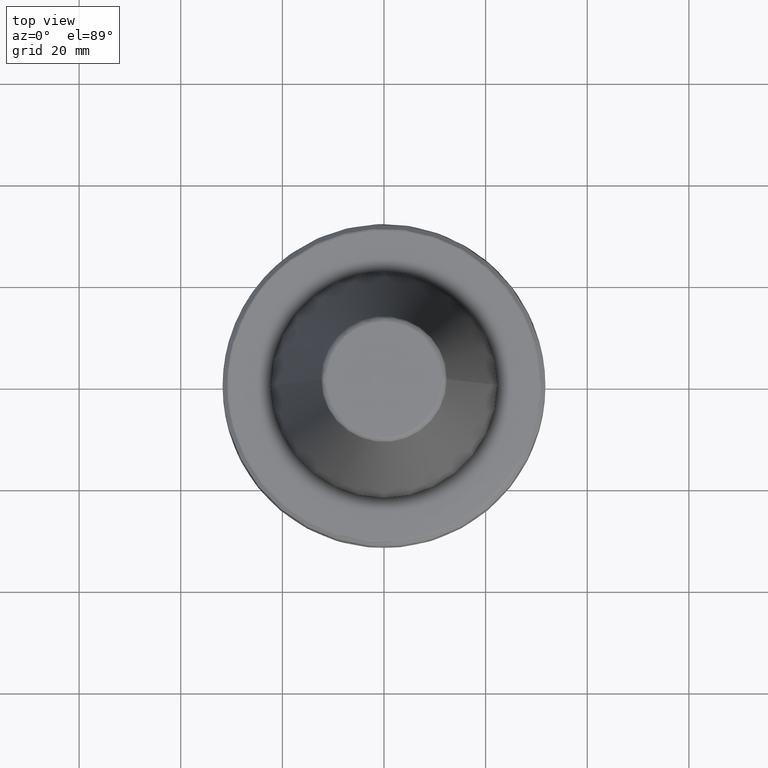
[diagram: clean part render]
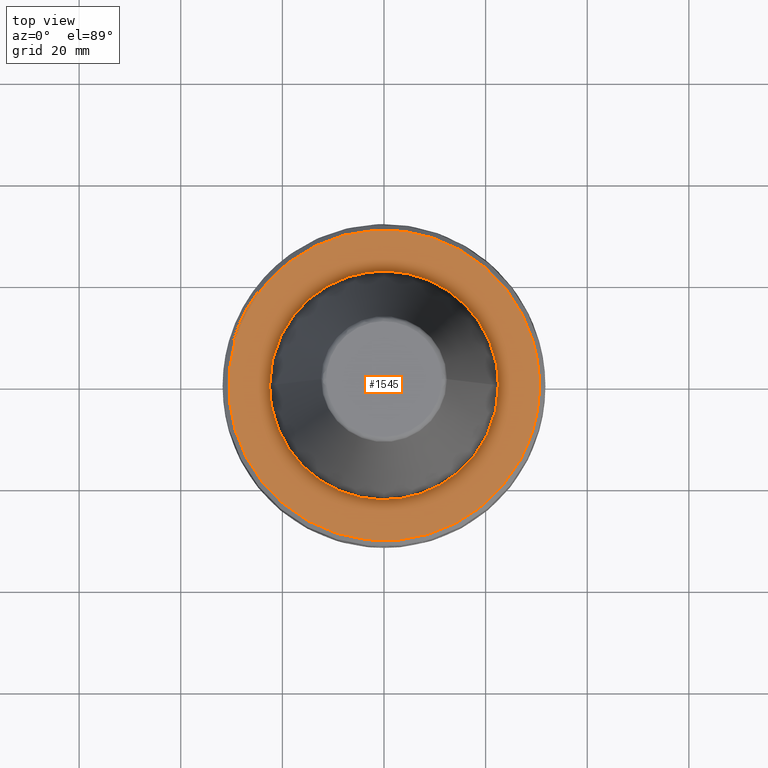
[diagram: same view with one face highlighted and labeled with its STEP entity id]
A machine part, top view. The second image highlights one B-rep face of the part: STEP entity #1545.
In plain terms, the highlighted planar face has unit normal (0, 0, 1).
Its self-contained STEP definition (entity closure, byte-faithful):
#10 = CARTESIAN_POINT ( 'NONE',  ( 2.454392795801720400, 30.48577087148502700, -3.200000000000001100 ) ) ;
#18 = CARTESIAN_POINT ( 'NONE',  ( 2.528533460625868900, 30.47970956005749700, -3.200000000000000200 ) ) ;
#37 = CARTESIAN_POINT ( 'NONE',  ( -18.49999999999998900, 24.35467712833949600, -3.199999999999994400 ) ) ;
#45 = CARTESIAN_POINT ( 'NONE',  ( -11.24038425294622300, 28.44688173160703600, -3.199999999999999700 ) ) ;
#54 = CARTESIAN_POINT ( 'NONE',  ( -27.77681930598627200, -12.80099507029943200, -3.199999999999999700 ) ) ;
#56 = CARTESIAN_POINT ( 'NONE',  ( -10.22499329430632600, 28.83626103400671100, -3.200000000000001100 ) ) ;
#69 = CARTESIAN_POINT ( 'NONE',  ( -9.340167935440471000, 29.12987215590241500, -3.200000000000000200 ) ) ;
#72 = CARTESIAN_POINT ( 'NONE',  ( -23.99031363748433100, -19.00230350509720600, -3.200000000000000200 ) ) ;
#75 = CARTESIAN_POINT ( 'NONE',  ( -3.848954711156225000, 30.36703951690236300, -3.199999999999999700 ) ) ;
#84 = CARTESIAN_POINT ( 'NONE',  ( -14.17277443621608800, -27.10247095659376600, -3.200000000000000600 ) ) ;
#86 = CARTESIAN_POINT ( 'NONE',  ( -2.603266312792917400, 30.49913331156266900, -3.199999999999999700 ) ) ;
#89 = CARTESIAN_POINT ( 'NONE',  ( -1.037282440228858100, 30.56832190550300200, -3.199999999999999700 ) ) ;
#98 = CARTESIAN_POINT ( 'NONE',  ( -5.357254148508216600, -30.11268354679387800, -3.200000000000000200 ) ) ;
#111 = CARTESIAN_POINT ( 'NONE',  ( -7.688059179597157600, 29.60519698498957200, -3.200000000000000200 ) ) ;
#115 = CARTESIAN_POINT ( 'NONE',  ( 4.560392810202886300, -30.24244440558941300, -3.199999999999999700 ) ) ;
#120 = CARTESIAN_POINT ( 'NONE',  ( -6.624788100412466500, 29.86976700629700000, -3.200000000000000600 ) ) ;
#131 = CARTESIAN_POINT ( 'NONE',  ( 13.33348093169351500, -27.52628396580792400, -3.199999999999999700 ) ) ;
#133 = CARTESIAN_POINT ( 'NONE',  ( -5.703788022667265700, 30.05429890996831700, -3.200000000000000600 ) ) ;
#135 = CARTESIAN_POINT ( 'NONE',  ( 19.96233499367379600, 23.17496761743385400, -3.200000000000001100 ) ) ;
#136 = CARTESIAN_POINT ( 'NONE',  ( 21.74157624390884500, -5.873028755191072900, -3.200000000000000200 ) ) ;
#141 = CARTESIAN_POINT ( 'NONE',  ( 16.20252111302109900, 25.94001894739811600, -3.200000000000000200 ) ) ;
#142 = CARTESIAN_POINT ( 'NONE',  ( 22.63882571495336600, -20.58104395213036900, -3.200000000000001100 ) ) ;
#143 = AXIS2_PLACEMENT_3D ( 'NONE', #2948, #1967, #809 ) ;
#148 = CARTESIAN_POINT ( 'NONE',  ( 16.33427142386522800, 25.85726144149187200, -3.199999999999999700 ) ) ;
#149 = CARTESIAN_POINT ( 'NONE',  ( 18.88550870197563500, -12.23098025896565000, -3.200000000000000200 ) ) ;
#156 = CARTESIAN_POINT ( 'NONE',  ( 27.54438001541699400, -13.29323302808682800, -3.199999999999999700 ) ) ;
#158 = CARTESIAN_POINT ( 'NONE',  ( 16.53138120580203100, 25.73240088654582200, -3.200000000000000200 ) ) ;
#161 = CARTESIAN_POINT ( 'NONE',  ( 8.896980882703543300, -20.66783356944393200, -3.199999999999999300 ) ) ;
#167 = CARTESIAN_POINT ( 'NONE',  ( 11.80488663214476100, 28.31907149285310900, -3.199999999999999700 ) ) ;
#172 = CARTESIAN_POINT ( 'NONE',  ( 13.99881594507354500, 27.30134385078334700, -3.200000000000000200 ) ) ;
#178 = CARTESIAN_POINT ( 'NONE',  ( 4.115307463144500100, -22.12045849206793200, -3.200000000000000600 ) ) ;
#183 = CARTESIAN_POINT ( 'NONE',  ( 16.13498759199677200, 25.98207429179373300, -3.200000000000000600 ) ) ;
#186 = CARTESIAN_POINT ( 'NONE',  ( -5.873028755191068500, -21.74157624390884200, -3.200000000000001100 ) ) ;
#188 = CARTESIAN_POINT ( 'NONE',  ( 24.54047191479334700, 18.25550594145703400, -3.199999999999999700 ) ) ;
#192 = CARTESIAN_POINT ( 'NONE',  ( -12.23098025896354500, -18.88550870197710900, -3.200000000000000200 ) ) ;
#195 = EDGE_CURVE ( 'NONE', #454, #2718, #2405, .T. ) ;
#200 = CARTESIAN_POINT ( 'NONE',  ( 24.72355445173918300, 18.00675945256601200, -3.199999999999999700 ) ) ;
#204 = CARTESIAN_POINT ( 'NONE',  ( -20.66783356943510700, -8.896980882719226700, -3.200000000000000200 ) ) ;
#214 = AXIS2_PLACEMENT_3D ( 'NONE', #2409, #2318, #2316 ) ;
#217 = CARTESIAN_POINT ( 'NONE',  ( -22.12045798509555200, -4.115310202398622300, -3.200000000000000200 ) ) ;
#232 = CARTESIAN_POINT ( 'NONE',  ( -24.35467712833948900, 18.50000000000000000, -3.199999999999994400 ) ) ;
#233 = CARTESIAN_POINT ( 'NONE',  ( 25.08445269890755500, 17.50055599941463700, -3.199999999999999300 ) ) ;
#238 = CARTESIAN_POINT ( 'NONE',  ( 25.61393462944857900, 16.73340307643418300, -3.200000000000000200 ) ) ;
#242 = CARTESIAN_POINT ( 'NONE',  ( 26.10782023935503900, 15.94270692369355700, -3.200000000000000200 ) ) ;
#253 = CARTESIAN_POINT ( 'NONE',  ( 26.46043628646762600, 15.33791319425800600, -3.199999999999999700 ) ) ;
#286 = B_SPLINE_CURVE_WITH_KNOTS ( 'NONE', 3,
 ( #2342, #1700, #1804, #1802, #2349, #2347, #2344, #1825, #1823, #1819, #601, #577, #559, #2579, #2542, #2533, #1975, #1972, #1965, #2605, #2583, #2550, #2029, #1999, #1976, #737, #720, #701, #2638, #2731, #2725, #2127, #2109, #2101, #2678, #2681, #2667, #2151, #2136, #2134, #1680, #1663, #1658, #1656, #1654, #1642, #520, #510, #506, #2438, #2432, #2419, #1892, #1891, #1873, #2451, #2448, #2444, #1921, #1917, #1907, #631, #621, #609, #455, #426, #411, #2635, #2626, #2615, #2064, #2048, #2037, #2684, #2570, #2521, #2093, #2084, #2074, #2285, #2280, #2279, #1750, #1748, #1743, #2312, #2296, #2293, #1797, #1791, #1781, #1639, #1631, #1625, #1620, #1615, #1598, #1526, #1517, #1509, #1570, #1541, #1528, #1453, #1434, #1427 ),
 .UNSPECIFIED., .F., .F.,
 ( 4, 1, 1, 1, 1, 1, 2, 2, 1, 1, 1, 1, 2, 2, 1, 1, 1, 2, 2, 2, 1, 1, 1, 2, 2, 1, 1, 1, 1, 2, 2, 1, 1, 1, 1, 1, 2, 2, 2, 1, 1, 1, 1, 1, 2, 2, 1, 1, 1, 1, 2, 2, 1, 1, 1, 2, 2, 2, 1, 1, 1, 2, 2, 1, 1, 1, 1, 2, 2, 1, 1, 1, 1, 1, 2, 2, 4 ),
 ( 0.0000000000000000000, 0.03124999999999839000, 0.04687499999999758500, 0.05468749999999717600, 0.05859374999999699500, 0.06054687499999689800, 0.06152343749999685700, 0.06249999999999680800, 0.09374999999999644700, 0.1093749999999962800, 0.1171874999999962000, 0.1210937499999961300, 0.1230468749999961400, 0.1249999999999961400, 0.1562499999999958900, 0.1718749999999958400, 0.1796874999999957800, 0.1835937499999957800, 0.1874999999999957800, 0.2499999999999961100, 0.2812499999999963400, 0.2968749999999964500, 0.3046874999999965000, 0.3085937499999965600, 0.3124999999999965600, 0.3437499999999969500, 0.3593749999999971700, 0.3671874999999973400, 0.3710937499999974500, 0.3730468749999974500, 0.3749999999999974500, 0.4062499999999965000, 0.4218749999999960000, 0.4296874999999957800, 0.4335937499999956700, 0.4355468749999956100, 0.4365234374999956100, 0.4374999999999956100, 0.4999999999999944500, 0.5312499999999938900, 0.5468749999999936700, 0.5546874999999936700, 0.5585937499999935600, 0.5605468749999935600, 0.5615234374999934500, 0.5624999999999934500, 0.5937499999999932300, 0.6093749999999931200, 0.6171874999999931200, 0.6210937499999930100, 0.6230468749999930100, 0.6249999999999930100, 0.6562499999999930100, 0.6718749999999931200, 0.6796874999999932300, 0.6835937499999932300, 0.6874999999999932300, 0.7499999999999935600, 0.7812499999999936700, 0.7968749999999937800, 0.8046874999999938900, 0.8085937499999938900, 0.8124999999999938900, 0.8437499999999942300, 0.8593749999999944500, 0.8671874999999946700, 0.8710937499999947800, 0.8730468749999948900, 0.8749999999999950000, 0.9062499999999963400, 0.9218749999999971100, 0.9296874999999975600, 0.9335937499999976700, 0.9355468749999977800, 0.9365234374999977800, 0.9374999999999978900, 1.000000000000000000 ),
 .UNSPECIFIED. ) ;
#312 = CARTESIAN_POINT ( 'NONE',  ( -16.56085603394844300, 25.82766579425000200, -3.200000000000000600 ) ) ;
#324 = CARTESIAN_POINT ( 'NONE',  ( -27.67364674244894100, -13.02197758003642200, -3.199999999999999300 ) ) ;
#328 = CARTESIAN_POINT ( 'NONE',  ( -22.56109142494934300, -20.65127541914423400, -3.199999999999999700 ) ) ;
#340 = CARTESIAN_POINT ( 'NONE',  ( -13.24394569623384400, -27.58067624818896800, -3.200000000000000200 ) ) ;
#350 = CARTESIAN_POINT ( 'NONE',  ( -4.857303280943340500, -30.19618385838899500, -3.200000000000001500 ) ) ;
#358 = CARTESIAN_POINT ( 'NONE',  ( 5.458850156849631000, -30.10416084470510600, -3.200000000000000200 ) ) ;
#367 = CARTESIAN_POINT ( 'NONE',  ( 13.79955834376171900, -27.29438307719195600, -3.199999999999998800 ) ) ;
#371 = CARTESIAN_POINT ( 'NONE',  ( 21.14787063408966400, -7.686207123305460500, -3.200000000000000600 ) ) ;
#379 = CARTESIAN_POINT ( 'NONE',  ( 24.36043102575109000, -18.50078877829109200, -3.200000000000001100 ) ) ;
#382 = CARTESIAN_POINT ( 'NONE',  ( 17.00797338681919900, -14.81177920651095200, -3.200000000000000600 ) ) ;
#398 = CARTESIAN_POINT ( 'NONE',  ( 8.458563634139736100, -20.84958280862343500, -3.200000000000000600 ) ) ;
#403 = CARTESIAN_POINT ( 'NONE',  ( 1.375857497312903900, -22.49996757041163400, -3.199999999999999300 ) ) ;
#409 = VERTEX_POINT ( 'NONE', #888 ) ;
#411 = CARTESIAN_POINT ( 'NONE',  ( 7.984698353428139100, 21.03591195339260300, -3.200000000000000200 ) ) ;
#413 = CARTESIAN_POINT ( 'NONE',  ( -7.686207123305462300, -21.14787063408966000, -3.200000000000000600 ) ) ;
#419 = DIRECTION ( 'NONE',  ( -0.0000000000000000000, -0.0000000000000000000, 1.000000000000000000 ) ) ;
#426 = CARTESIAN_POINT ( 'NONE',  ( 7.686207123274499500, 21.14787063409919600, -3.200000000000000600 ) ) ;
#429 = CARTESIAN_POINT ( 'NONE',  ( -14.81177920650302200, -17.00797338683712900, -3.199999999999999300 ) ) ;
#439 = CARTESIAN_POINT ( 'NONE',  ( 27.61100680695583200, -13.15427429998718600, -3.200000000000001100 ) ) ;
#441 = CARTESIAN_POINT ( 'NONE',  ( -20.84958280862066700, -8.458563634144654800, -3.200000000000000600 ) ) ;
#450 = CARTESIAN_POINT ( 'NONE',  ( -22.50000000000000700, -1.376388306158772500, -3.200000000000000600 ) ) ;
#454 = VERTEX_POINT ( 'NONE', #835 ) ;
#455 = CARTESIAN_POINT ( 'NONE',  ( 7.086048807648322300, 21.36063849916836300, -3.200000000000000600 ) ) ;
#473 = VERTEX_POINT ( 'NONE', #893 ) ;
#506 = CARTESIAN_POINT ( 'NONE',  ( -4.183831549484186700, 22.10760170058108200, -3.199999999999999700 ) ) ;
#510 = CARTESIAN_POINT ( 'NONE',  ( -4.251028217307362100, 22.09485092206773900, -3.200000000000001100 ) ) ;
#514 = CARTESIAN_POINT ( 'NONE',  ( 3.435970030515198600, 30.39351583441197100, -3.200000000000000600 ) ) ;
#520 = CARTESIAN_POINT ( 'NONE',  ( -4.407618502888016800, 22.06440325785875700, -3.199999999999999300 ) ) ;
#559 = CARTESIAN_POINT ( 'NONE',  ( -21.36063849916189700, 7.086048807666240500, -3.199999999999999300 ) ) ;
#568 = CARTESIAN_POINT ( 'NONE',  ( -27.28410426008761300, -13.84330885026767500, -3.200000000000001100 ) ) ;
#577 = CARTESIAN_POINT ( 'NONE',  ( -21.74157624392201900, 5.873028755144217100, -3.200000000000000200 ) ) ;
#578 = EDGE_CURVE ( 'NONE', #2786, #2501, #1752, .T. ) ;
#582 = CARTESIAN_POINT ( 'NONE',  ( -22.20554153728079400, -21.03152593331130400, -3.200000000000000600 ) ) ;
#601 = CARTESIAN_POINT ( 'NONE',  ( -21.99164062164871000, 4.811519987923173100, -3.200000000000001100 ) ) ;
#603 = CARTESIAN_POINT ( 'NONE',  ( -10.75810060105670600, -28.63517167116412300, -3.199999999999999700 ) ) ;
#609 = CARTESIAN_POINT ( 'NONE',  ( 5.873028755120320600, 21.74157624393063400, -3.200000000000000600 ) ) ;
#614 = CARTESIAN_POINT ( 'NONE',  ( -4.705085878606683800, -30.22027126947324800, -3.200000000000001100 ) ) ;
#615 = CARTESIAN_POINT ( 'NONE',  ( 21.46121072403760300, 21.79932372885590300, -3.199999999999999700 ) ) ;
#618 = CARTESIAN_POINT ( 'NONE',  ( 22.77429056701172200, 20.45246270157970500, -3.200000000000000200 ) ) ;
#621 = CARTESIAN_POINT ( 'NONE',  ( 4.811519987909519200, 21.99164062165363400, -3.200000000000000200 ) ) ;
#628 = CARTESIAN_POINT ( 'NONE',  ( 8.022211266189565000, -29.51842591293807800, -3.199999999999999700 ) ) ;
#629 = CARTESIAN_POINT ( 'NONE',  ( -14.47569103928374700, 27.05153356264567000, -3.200000000000001100 ) ) ;
#631 = CARTESIAN_POINT ( 'NONE',  ( 4.071751450878374500, 22.12851860711415200, -3.200000000000000200 ) ) ;
#633 = CARTESIAN_POINT ( 'NONE',  ( 23.59206616262321900, 19.50355204649191200, -3.200000000000000600 ) ) ;
#634 = CARTESIAN_POINT ( 'NONE',  ( 22.45304634867161300, -1.715799754931167900, -3.200000000000000200 ) ) ;
#642 = CARTESIAN_POINT ( 'NONE',  ( 15.48792760816363200, -26.42690957761473000, -3.199999999999999700 ) ) ;
#646 = CARTESIAN_POINT ( 'NONE',  ( 26.94337422490542600, 14.47847139620824700, -3.200000000000001100 ) ) ;
#648 = CARTESIAN_POINT ( 'NONE',  ( 20.98673507276421500, -8.112282896148103700, -3.200000000000000200 ) ) ;
#652 = CARTESIAN_POINT ( 'NONE',  ( 27.43651020383328300, 13.53928854120142800, -3.200000000000000200 ) ) ;
#654 = CARTESIAN_POINT ( 'NONE',  ( 25.00162825174038500, -17.61641936751932000, -3.200000000000000200 ) ) ;
#658 = CARTESIAN_POINT ( 'NONE',  ( 19.60237854230756900, 23.47705769608395700, -3.199999999999999700 ) ) ;
#659 = CARTESIAN_POINT ( 'NONE',  ( 14.49938022714922100, -17.23607257882569900, -3.199999999999999300 ) ) ;
#662 = CARTESIAN_POINT ( 'NONE',  ( 29.30593451889330900, 8.750000000000012400, -3.199999999999994400 ) ) ;
#667 = CARTESIAN_POINT ( 'NONE',  ( 8.324524703929661500, -20.90345235396846500, -3.200000000000000600 ) ) ;
#681 = CARTESIAN_POINT ( 'NONE',  ( -1.715646395057947200, -22.45307472456143200, -3.200000000000000600 ) ) ;
#687 = CARTESIAN_POINT ( 'NONE',  ( 4.488890650684448100, 30.26424933308379300, -3.200000000000001100 ) ) ;
#691 = CARTESIAN_POINT ( 'NONE',  ( -8.112282896148109000, -20.98673507276421500, -3.200000000000000200 ) ) ;
#693 = CARTESIAN_POINT ( 'NONE',  ( 6.576107746370472500, 29.91282126789227600, -3.200000000000000200 ) ) ;
#696 = CARTESIAN_POINT ( 'NONE',  ( 8.333223866125692300, 29.45234853338218900, -3.200000000000001100 ) ) ;
#699 = CARTESIAN_POINT ( 'NONE',  ( -17.23607257883263300, -14.49938022713351800, -3.200000000000000200 ) ) ;
#701 = CARTESIAN_POINT ( 'NONE',  ( -15.36086717163463800, 16.45896426178976300, -3.200000000000001100 ) ) ;
#706 = CARTESIAN_POINT ( 'NONE',  ( 28.85918037033473700, -10.24629117985158000, -3.199999999999998800 ) ) ;
#708 = CARTESIAN_POINT ( 'NONE',  ( -20.90345235396920400, -8.324524703927284700, -3.199999999999999700 ) ) ;
#720 = CARTESIAN_POINT ( 'NONE',  ( -17.00797338682269500, 14.81177920651246400, -3.200000000000000600 ) ) ;
#737 = CARTESIAN_POINT ( 'NONE',  ( -17.98264380950361400, 13.61204652639205500, -3.199999999999999700 ) ) ;
#738 = CARTESIAN_POINT ( 'NONE',  ( -0.7285515701826120700, 30.57722589314201800, -3.200000000000000200 ) ) ;
#742 = CARTESIAN_POINT ( 'NONE',  ( -0.1069271606581389100, 30.58574494882751400, -3.199999999999999700 ) ) ;
#747 = CARTESIAN_POINT ( 'NONE',  ( 0.8252062185939788000, 30.58430088161414800, -3.199999999999999700 ) ) ;
#778 = CARTESIAN_POINT ( 'NONE',  ( 16.98769424001548200, 25.43598951906483700, -3.199999999999999700 ) ) ;
#792 = CARTESIAN_POINT ( 'NONE',  ( 17.88588114721942900, 24.82288649367547600, -3.200000000000000600 ) ) ;
#797 = CARTESIAN_POINT ( 'NONE',  ( 18.63100279129773500, 24.26260340260906600, -3.200000000000000200 ) ) ;
#804 = CARTESIAN_POINT ( 'NONE',  ( 26.49765628487155300, 15.27351905694540000, -3.199999999999998400 ) ) ;
#809 = DIRECTION ( 'NONE',  ( 1.000000000000000000, 0.0000000000000000000, 0.0000000000000000000 ) ) ;
#810 = CARTESIAN_POINT ( 'NONE',  ( 26.57327955334342600, 15.14158967653129700, -3.200000000000000600 ) ) ;
#834 = CARTESIAN_POINT ( 'NONE',  ( -25.98948903615415400, -16.13194971530458600, -3.200000000000000600 ) ) ;
#835 = CARTESIAN_POINT ( 'NONE',  ( 29.30593451889330900, 8.750000000000012400, -3.199999999999994400 ) ) ;
#837 = CARTESIAN_POINT ( 'NONE',  ( 26.68593816532891300, 14.94335966607924600, -3.200000000000000600 ) ) ;
#847 = CARTESIAN_POINT ( 'NONE',  ( -20.89129424420701800, -22.40114452926077600, -3.200000000000000200 ) ) ;
#852 = CARTESIAN_POINT ( 'NONE',  ( -9.727253638797327200, -28.99655467839254200, -3.199999999999999300 ) ) ;
#869 = CARTESIAN_POINT ( 'NONE',  ( -1.561052253934965800, -30.58428797049582900, -3.200000000000000200 ) ) ;
#871 = CARTESIAN_POINT ( 'NONE',  ( 19.36078262649303700, 23.67667543168819600, -3.199999999999998800 ) ) ;
#886 = CARTESIAN_POINT ( 'NONE',  ( 9.042334779846246600, -29.21737119051157800, -3.200000000000000600 ) ) ;
#888 = CARTESIAN_POINT ( 'NONE',  ( -22.50000000000000400, 2.755455298081544800E-015, -3.199999999999999300 ) ) ;
#889 = CARTESIAN_POINT ( 'NONE',  ( 22.22708190165376200, -3.501431974169107800, -3.200000000000000200 ) ) ;
#893 = CARTESIAN_POINT ( 'NONE',  ( 22.50000000000000400, 0.0000000000000000000, -3.199999999999999300 ) ) ;
#896 = CARTESIAN_POINT ( 'NONE',  ( 18.95028892448621600, -24.02085740246086200, -3.200000000000000200 ) ) ;
#899 = CARTESIAN_POINT ( 'NONE',  ( 20.93772414133970000, -8.237955812652693100, -3.200000000000000200 ) ) ;
#904 = CARTESIAN_POINT ( 'NONE',  ( 25.15049554832833000, -17.40274506739941200, -3.200000000000000600 ) ) ;
#908 = AXIS2_PLACEMENT_3D ( 'NONE', #1852, #419, #2078 ) ;
#909 = CARTESIAN_POINT ( 'NONE',  ( 12.87560569880346700, -18.45365423866068300, -3.200000000000000600 ) ) ;
#919 = CARTESIAN_POINT ( 'NONE',  ( 19.23818591257920800, 23.77638626440856500, -3.199999999999999700 ) ) ;
#922 = CARTESIAN_POINT ( 'NONE',  ( 6.571610993358049800, -21.54071728405216400, -3.200000000000000600 ) ) ;
#927 = CARTESIAN_POINT ( 'NONE',  ( 0.0000000000000000000, 0.0000000000000000000, -3.199999999999994400 ) ) ;
#931 = CARTESIAN_POINT ( 'NONE',  ( -3.501364879224580000, -22.22709431610556100, -3.200000000000000600 ) ) ;
#936 = CARTESIAN_POINT ( 'NONE',  ( -8.237955812652499400, -20.93772414133978200, -3.199999999999999700 ) ) ;
#948 = CARTESIAN_POINT ( 'NONE',  ( -18.45365423866372400, -12.87560569879659900, -3.200000000000001100 ) ) ;
#963 = CARTESIAN_POINT ( 'NONE',  ( -21.54071728403163600, -6.571610993424445500, -3.200000000000000600 ) ) ;
#977 = CIRCLE ( 'NONE', #2907, 30.58431457505076500 ) ;
#980 = ORIENTED_EDGE ( 'NONE', *, *, #2880, .T. ) ;
#986 = CIRCLE ( 'NONE', #908, 30.58431457505076500 ) ;
#1014 = CARTESIAN_POINT ( 'NONE',  ( -28.10145510425815400, 12.21006217782732200, -3.200000000000000200 ) ) ;
#1070 = CARTESIAN_POINT ( 'NONE',  ( -25.40916637817120700, -17.02330348438625100, -3.200000000000000200 ) ) ;
#1081 = CARTESIAN_POINT ( 'NONE',  ( -17.59524950987386300, -25.03042619205421800, -3.199999999999999700 ) ) ;
#1091 = VERTEX_POINT ( 'NONE', #1858 ) ;
#1096 = CARTESIAN_POINT ( 'NONE',  ( -9.479920520539741000, -29.07806852477674700, -3.200000000000000200 ) ) ;
#1105 = ORIENTED_EDGE ( 'NONE', *, *, #1712, .T. ) ;
#1113 = CARTESIAN_POINT ( 'NONE',  ( 1.948029713574673800, -30.53976102089345400, -3.200000000000000200 ) ) ;
#1119 = CARTESIAN_POINT ( 'NONE',  ( 9.284161809037010800, -29.14115916764471600, -3.199999999999999700 ) ) ;
#1123 = CARTESIAN_POINT ( 'NONE',  ( 22.15133245634663300, -3.946100473371058700, -3.199999999999999700 ) ) ;
#1129 = CARTESIAN_POINT ( 'NONE',  ( 21.01696416253381700, -22.22623960064235900, -3.200000000000000600 ) ) ;
#1133 = CARTESIAN_POINT ( 'NONE',  ( 20.16961076428826500, -10.02279629559978100, -3.199999999999998800 ) ) ;
#1145 = CARTESIAN_POINT ( 'NONE',  ( 25.66906082886724100, -16.64808964168210200, -3.200000000000000600 ) ) ;
#1148 = CARTESIAN_POINT ( 'NONE',  ( 12.47437238289376500, -18.72563884435562500, -3.200000000000000600 ) ) ;
#1154 = CARTESIAN_POINT ( 'NONE',  ( -12.10176357993545400, 28.08831770798232300, -3.199999999999999700 ) ) ;
#1156 = CARTESIAN_POINT ( 'NONE',  ( 4.719991316668444600, -22.00072453873692200, -3.200000000000000200 ) ) ;
#1159 = DIRECTION ( 'NONE',  ( 1.000000000000000000, 0.0000000000000000000, 0.0000000000000000000 ) ) ;
#1162 = CARTESIAN_POINT ( 'NONE',  ( -3.946081902448917300, -22.15133589248955200, -3.200000000000000600 ) ) ;
#1170 = CARTESIAN_POINT ( 'NONE',  ( -11.95872026362621700, 28.14951867898243900, -3.200000000000000600 ) ) ;
#1174 = CARTESIAN_POINT ( 'NONE',  ( -10.02279629560528400, -20.16961076428609100, -3.200000000000000600 ) ) ;
#1181 = CARTESIAN_POINT ( 'NONE',  ( -11.74385340892359900, 28.24048383202686100, -3.199999999999999700 ) ) ;
#1185 = CARTESIAN_POINT ( 'NONE',  ( -18.72563884435658800, -12.47437238289159500, -3.200000000000000200 ) ) ;
#1187 = EDGE_CURVE ( 'NONE', #409, #473, #286, .T. ) ;
#1194 = CARTESIAN_POINT ( 'NONE',  ( -22.00072453872795100, -4.719991316697491600, -3.200000000000000600 ) ) ;
#1195 = CARTESIAN_POINT ( 'NONE',  ( -8.594763330018802000, 29.35224666532914000, -3.199999999999999700 ) ) ;
#1205 = CARTESIAN_POINT ( 'NONE',  ( -8.442993445781287000, 29.39627059819669700, -3.199999999999999700 ) ) ;
#1227 = CARTESIAN_POINT ( 'NONE',  ( -29.30593451889330600, -8.750000000000019500, -3.199999999999999300 ) ) ;
#1228 = CARTESIAN_POINT ( 'NONE',  ( -8.141340568208146800, 29.48124923292407100, -3.200000000000000200 ) ) ;
#1230 = CARTESIAN_POINT ( 'NONE',  ( -12.17478045277850100, 28.05674127324149600, -3.200000000000000200 ) ) ;
#1239 = CARTESIAN_POINT ( 'NONE',  ( 0.0000000000000000000, 0.0000000000000000000, -3.199999999999994400 ) ) ;
#1262 = CARTESIAN_POINT ( 'NONE',  ( 2.680059272117456500, 30.46677238501864700, -3.199999999999999700 ) ) ;
#1273 = CARTESIAN_POINT ( 'NONE',  ( -29.30593451889331300, 8.749999999999998200, -3.200000000000000200 ) ) ;
#1294 = CARTESIAN_POINT ( 'NONE',  ( -28.70585737796715600, -10.60399651550462100, -3.199999999999999700 ) ) ;
#1304 = CARTESIAN_POINT ( 'NONE',  ( -25.26695455758210700, -17.23321866383381000, -3.199999999999998800 ) ) ;
#1316 = CARTESIAN_POINT ( 'NONE',  ( -15.28437999715246000, -26.49728736109064200, -3.200000000000000600 ) ) ;
#1325 = CARTESIAN_POINT ( 'NONE',  ( -8.608449995044022500, -29.35905586418761400, -3.199999999999999700 ) ) ;
#1332 = CARTESIAN_POINT ( 'NONE',  ( 3.981098828364807200, -30.32522191696399000, -3.200000000000001100 ) ) ;
#1337 = CARTESIAN_POINT ( 'NONE',  ( 22.50000000000000400, 0.0000000000000000000, -3.199999999999999300 ) ) ;
#1345 = CARTESIAN_POINT ( 'NONE',  ( 10.17404257737425200, -28.85454279252324000, -3.200000000000000200 ) ) ;
#1350 = CARTESIAN_POINT ( 'NONE',  ( 22.13216582914422800, -4.051871761185046800, -3.199999999999999300 ) ) ;
#1355 = CARTESIAN_POINT ( 'NONE',  ( 21.76708313657914600, -21.48502183609348700, -3.200000000000000200 ) ) ;
#1356 = CARTESIAN_POINT ( 'NONE',  ( 19.18907189198100100, -11.75138774876444200, -3.200000000000001100 ) ) ;
#1362 = CARTESIAN_POINT ( 'NONE',  ( 26.99856130462750400, -14.37953634106440100, -3.199999999999999700 ) ) ;
#1365 = CARTESIAN_POINT ( 'NONE',  ( 11.67597141480891300, -19.24838585783804100, -3.200000000000000600 ) ) ;
#1372 = CARTESIAN_POINT ( 'NONE',  ( 4.251028217301676900, -22.09485092206981000, -3.200000000000000200 ) ) ;
#1382 = CARTESIAN_POINT ( 'NONE',  ( -4.051866326836864700, -22.13216683465148900, -3.199999999999999700 ) ) ;
#1389 = CARTESIAN_POINT ( 'NONE',  ( -11.75138774876684200, -19.18907189198004900, -3.200000000000000200 ) ) ;
#1401 = CARTESIAN_POINT ( 'NONE',  ( -19.24838585782649900, -11.67597141482940200, -3.199999999999999700 ) ) ;
#1415 = CARTESIAN_POINT ( 'NONE',  ( -22.09485092206732700, -4.251028217309717600, -3.200000000000000600 ) ) ;
#1427 = CARTESIAN_POINT ( 'NONE',  ( 22.50000000000000400, 0.0000000000000000000, -3.199999999999999300 ) ) ;
#1434 = CARTESIAN_POINT ( 'NONE',  ( 22.50000000000000400, 1.376388306145680500, -3.200000000000000200 ) ) ;
#1445 = DIRECTION ( 'NONE',  ( 1.000000000000000000, 0.0000000000000000000, 0.0000000000000000000 ) ) ;
#1453 = CARTESIAN_POINT ( 'NONE',  ( 22.37479026312431400, 2.741111199236805400, -3.200000000000000600 ) ) ;
#1498 = CARTESIAN_POINT ( 'NONE',  ( -27.91867295085385700, -12.49063015164107400, -3.199999999999999700 ) ) ;
#1503 = CARTESIAN_POINT ( 'NONE',  ( -24.73772846013598300, -18.00390437555412500, -3.200000000000000200 ) ) ;
#1509 = CARTESIAN_POINT ( 'NONE',  ( 22.09485092206839200, 4.251028217305421500, -3.199999999999999700 ) ) ;
#1514 = CARTESIAN_POINT ( 'NONE',  ( -14.35953925151739300, -27.00399422411325600, -3.200000000000000600 ) ) ;
#1517 = CARTESIAN_POINT ( 'NONE',  ( 22.06440325786003600, 4.407618502884258900, -3.200000000000000200 ) ) ;
#1526 = CARTESIAN_POINT ( 'NONE',  ( 22.00072453873180600, 4.719991316681966300, -3.200000000000000200 ) ) ;
#1528 = CARTESIAN_POINT ( 'NONE',  ( 22.12045798509555900, 4.115310202398825700, -3.200000000000000600 ) ) ;
#1530 = CARTESIAN_POINT ( 'NONE',  ( -6.054356345127971800, -29.98396483372179200, -3.200000000000000600 ) ) ;
#1541 = CARTESIAN_POINT ( 'NONE',  ( 22.11603594838275600, 4.139014538616730300, -3.200000000000001100 ) ) ;
#1544 = CARTESIAN_POINT ( 'NONE',  ( 4.463888020573260300, -30.25684056681910400, -3.200000000000000200 ) ) ;
#1545 = ADVANCED_FACE ( 'NONE', ( #1696, #2571 ), #2336, .T. ) ;
#1548 = CARTESIAN_POINT ( 'NONE',  ( 22.49999999999999600, -0.6880163828697204400, -3.199999999999998800 ) ) ;
#1552 = CARTESIAN_POINT ( 'NONE',  ( 12.67616131524168600, -27.83926536632835900, -3.199999999999998800 ) ) ;
#1554 = CARTESIAN_POINT ( 'NONE',  ( 21.99164062164117800, -4.811519987949947300, -3.200000000000000600 ) ) ;
#1558 = CARTESIAN_POINT ( 'NONE',  ( 21.98943496480653100, -21.25737027114857000, -3.199999999999999700 ) ) ;
#1563 = CARTESIAN_POINT ( 'NONE',  ( 18.93590339580105900, -12.15280497094321500, -3.200000000000000200 ) ) ;
#1570 = CARTESIAN_POINT ( 'NONE',  ( 22.10760170058146200, 4.183831549483062200, -3.200000000000000200 ) ) ;
#1573 = CARTESIAN_POINT ( 'NONE',  ( 27.47815279796052600, -13.43017972972223900, -3.199999999999999700 ) ) ;
#1579 = CARTESIAN_POINT ( 'NONE',  ( 9.504079748831721000, -20.40055232577914500, -3.200000000000000600 ) ) ;
#1592 = CARTESIAN_POINT ( 'NONE',  ( 4.139014538615635200, -22.11603594838316400, -3.200000000000000200 ) ) ;
#1598 = CARTESIAN_POINT ( 'NONE',  ( 21.86223353762935800, 5.341505914837489000, -3.200000000000000600 ) ) ;
#1600 = CARTESIAN_POINT ( 'NONE',  ( -4.811519987949943700, -21.99164062164117100, -3.199999999999999700 ) ) ;
#1610 = CARTESIAN_POINT ( 'NONE',  ( -12.15280497094398100, -18.93590339580075400, -3.199999999999999700 ) ) ;
#1615 = CARTESIAN_POINT ( 'NONE',  ( 21.54071728404044400, 6.571610993388965500, -3.200000000000000200 ) ) ;
#1616 = ORIENTED_EDGE ( 'NONE', *, *, #2698, .T. ) ;
#1620 = CARTESIAN_POINT ( 'NONE',  ( 21.18878749287739200, 7.603831144559534600, -3.200000000000000600 ) ) ;
#1625 = CARTESIAN_POINT ( 'NONE',  ( 20.90345235396888100, 8.324524703928553000, -3.200000000000000200 ) ) ;
#1626 = CARTESIAN_POINT ( 'NONE',  ( -20.40055232576401100, -9.504079748858595500, -3.199999999999999700 ) ) ;
#1631 = CARTESIAN_POINT ( 'NONE',  ( 20.88510905071724400, 8.370451108366499000, -3.200000000000001100 ) ) ;
#1635 = CARTESIAN_POINT ( 'NONE',  ( -22.11603594838243900, -4.139014538617989700, -3.200000000000000600 ) ) ;
#1639 = CARTESIAN_POINT ( 'NONE',  ( 20.84958280862257900, 8.458563634141711400, -3.200000000000000200 ) ) ;
#1642 = CARTESIAN_POINT ( 'NONE',  ( -4.719991316688983800, 22.00072453872944300, -3.200000000000000600 ) ) ;
#1643 = CARTESIAN_POINT ( 'NONE',  ( -26.43773944750569900, 15.48610090927757100, -3.200000000000000600 ) ) ;
#1649 = ORIENTED_EDGE ( 'NONE', *, *, #2019, .T. ) ;
#1654 = CARTESIAN_POINT ( 'NONE',  ( -5.341505914849514100, 21.86223353762529300, -3.200000000000000600 ) ) ;
#1656 = CARTESIAN_POINT ( 'NONE',  ( -6.571610993404996200, 21.54071728403503300, -3.199999999999999700 ) ) ;
#1658 = CARTESIAN_POINT ( 'NONE',  ( -7.603831144568696100, 21.18878749287429700, -3.200000000000000200 ) ) ;
#1663 = CARTESIAN_POINT ( 'NONE',  ( -8.324524703927975700, 20.90345235396907600, -3.199999999999999700 ) ) ;
#1680 = CARTESIAN_POINT ( 'NONE',  ( -8.370451108366790300, 20.88510905071707000, -3.200000000000000200 ) ) ;
#1681 = CARTESIAN_POINT ( 'NONE',  ( -25.46593605708334400, 17.03706203159250900, -3.199999999999999700 ) ) ;
#1696 = FACE_OUTER_BOUND ( 'NONE', #2872, .T. ) ;
#1697 = EDGE_LOOP ( 'NONE', ( #2301, #1616 ) ) ;
#1700 = CARTESIAN_POINT ( 'NONE',  ( -22.50000000000000700, 0.6880163828565797300, -3.200000000000001100 ) ) ;
#1712 = EDGE_CURVE ( 'NONE', #2718, #2786, #2147, .T. ) ;
#1717 = B_SPLINE_CURVE_WITH_KNOTS ( 'NONE', 3,
 ( #1337, #1548, #634, #2248, #889, #2464, #1123, #2682, #1350, #2895, #1554, #136, #1806, #371, #2035, #648, #2258, #899, #2479, #1133, #2690, #1356, #2908, #1563, #149, #1818, #382, #2041, #659, #2272, #909, #2484, #1148, #2707, #1365, #2914, #1579, #161, #1828, #398, #2055, #667, #2278, #922, #2497, #1156, #2720, #1372, #2919, #1592, #178, #1838, #403, #2069, #681, #2283, #931, #2513, #1162, #2727, #1382, #2926, #1600, #186, #1849, #413, #2077, #691, #2297, #936, #2518, #1174, #2736, #1389, #2939, #1610, #192, #1856, #429, #2085, #699, #2309, #948, #2524, #1185, #2749, #1401, #2949, #1626, #204, #1867, #441, #2095, #708, #2315, #963, #2534, #1194, #2757, #1415, #2961, #1635, #217, #1877, #450, #2104 ),
 .UNSPECIFIED., .F., .F.,
 ( 4, 1, 1, 1, 1, 1, 2, 2, 1, 1, 1, 1, 2, 2, 1, 1, 1, 2, 2, 2, 1, 1, 1, 2, 2, 1, 1, 1, 1, 2, 2, 1, 1, 1, 1, 1, 2, 2, 2, 1, 1, 1, 1, 1, 2, 2, 1, 1, 1, 1, 2, 2, 1, 1, 1, 2, 2, 2, 1, 1, 1, 2, 2, 1, 1, 1, 1, 2, 2, 1, 1, 1, 1, 1, 2, 2, 4 ),
 ( 0.0000000000000000000, 0.03124999999999908400, 0.04687499999999860500, 0.05468749999999836900, 0.05859374999999825800, 0.06054687499999819600, 0.06152343749999818900, 0.06249999999999818200, 0.09374999999999732200, 0.1093749999999968900, 0.1171874999999966700, 0.1210937499999965400, 0.1230468749999965400, 0.1249999999999965300, 0.1562499999999963600, 0.1718749999999962500, 0.1796874999999961700, 0.1835937499999960900, 0.1874999999999960000, 0.2499999999999953400, 0.2812499999999949500, 0.2968749999999948400, 0.3046874999999947800, 0.3085937499999947800, 0.3124999999999947800, 0.3437499999999951200, 0.3593749999999953400, 0.3671874999999953900, 0.3710937499999954500, 0.3730468749999955000, 0.3749999999999955600, 0.4062499999999958400, 0.4218749999999960000, 0.4296874999999960600, 0.4335937499999960600, 0.4355468749999960600, 0.4365234374999960600, 0.4374999999999960000, 0.4999999999999953400, 0.5312499999999950000, 0.5468749999999947800, 0.5546874999999946700, 0.5585937499999946700, 0.5605468749999945600, 0.5615234374999945600, 0.5624999999999944500, 0.5937499999999942300, 0.6093749999999941200, 0.6171874999999940000, 0.6210937499999938900, 0.6230468749999940000, 0.6249999999999940000, 0.6562499999999947800, 0.6718749999999952300, 0.6796874999999954500, 0.6835937499999955600, 0.6874999999999955600, 0.7499999999999982200, 0.7812499999999995600, 0.7968750000000002200, 0.8046875000000005600, 0.8085937500000007800, 0.8125000000000008900, 0.8437500000000022200, 0.8593750000000028900, 0.8671875000000032200, 0.8710937500000033300, 0.8730468750000034400, 0.8750000000000034400, 0.9062500000000028900, 0.9218750000000026600, 0.9296875000000025500, 0.9335937500000024400, 0.9355468750000023300, 0.9365234375000023300, 0.9375000000000022200, 1.000000000000000000 ),
 .UNSPECIFIED. ) ;
#1743 = CARTESIAN_POINT ( 'NONE',  ( 18.72563884435662000, 12.47437238289156800, -3.199999999999999300 ) ) ;
#1748 = CARTESIAN_POINT ( 'NONE',  ( 18.61742605471209400, 12.63533988221464600, -3.199999999999999700 ) ) ;
#1750 = CARTESIAN_POINT ( 'NONE',  ( 18.45365423866382000, 12.87560569879649600, -3.200000000000000200 ) ) ;
#1751 = CARTESIAN_POINT ( 'NONE',  ( -27.71504625243958100, -12.93363446210935500, -3.200000000000000200 ) ) ;
#1752 = B_SPLINE_CURVE_WITH_KNOTS ( 'NONE', 3,
 ( #1927, #1681, #1643, #1014, #2924, #1273 ),
 .UNSPECIFIED., .F., .F.,
 ( 4, 2, 4 ),
 ( 0.0000000000000000000, 0.5000000000000000000, 1.000000000000000000 ),
 .UNSPECIFIED. ) ;
#1756 = CARTESIAN_POINT ( 'NONE',  ( -23.04904609321287300, -20.11097302519079100, -3.200000000000000200 ) ) ;
#1757 = CARTESIAN_POINT ( 'NONE',  ( 28.95764183663448000, 9.916519147392797600, -3.200000000000000200 ) ) ;
#1770 = CARTESIAN_POINT ( 'NONE',  ( -14.07778958757438100, -27.15192223847229500, -3.199999999999999700 ) ) ;
#1779 = CARTESIAN_POINT ( 'NONE',  ( -5.007473042384827300, -30.17190452209561600, -3.199999999999999700 ) ) ;
#1781 = CARTESIAN_POINT ( 'NONE',  ( 20.79589492657334300, 8.590524805355373800, -3.199999999999999300 ) ) ;
#1789 = CARTESIAN_POINT ( 'NONE',  ( 4.606748291940157900, -30.23542110148293100, -3.200000000000000200 ) ) ;
#1791 = CARTESIAN_POINT ( 'NONE',  ( 20.66783356944120300, 8.896980882709847500, -3.200000000000000200 ) ) ;
#1797 = CARTESIAN_POINT ( 'NONE',  ( 20.40055232577446300, 9.504079748842523000, -3.200000000000000600 ) ) ;
#1799 = CARTESIAN_POINT ( 'NONE',  ( 13.61336996244148700, -27.38773233231271600, -3.199999999999999300 ) ) ;
#1802 = CARTESIAN_POINT ( 'NONE',  ( -22.31609819896381800, 2.907458251726792000, -3.199999999999999700 ) ) ;
#1804 = CARTESIAN_POINT ( 'NONE',  ( -22.45304634867162000, 1.715799754908170300, -3.200000000000000600 ) ) ;
#1806 = CARTESIAN_POINT ( 'NONE',  ( 21.36063849915200700, -7.086048807701382100, -3.199999999999998800 ) ) ;
#1810 = VERTEX_POINT ( 'NONE', #2396 ) ;
#1814 = CARTESIAN_POINT ( 'NONE',  ( 23.46525560290407600, -19.64699716450099800, -3.200000000000000200 ) ) ;
#1818 = CARTESIAN_POINT ( 'NONE',  ( 17.98264380952407700, -13.61204652636657500, -3.199999999999999700 ) ) ;
#1819 = CARTESIAN_POINT ( 'NONE',  ( -22.12851860711429500, 4.071751450877952600, -3.199999999999999300 ) ) ;
#1823 = CARTESIAN_POINT ( 'NONE',  ( -22.13216582914423100, 4.051871761184235000, -3.200000000000000200 ) ) ;
#1825 = CARTESIAN_POINT ( 'NONE',  ( -22.13986916256529700, 4.009566559497096200, -3.200000000000000200 ) ) ;
#1828 = CARTESIAN_POINT ( 'NONE',  ( 8.590524805351991600, -20.79589492657481400, -3.199999999999999700 ) ) ;
#1838 = CARTESIAN_POINT ( 'NONE',  ( 2.741286511513688400, -22.37475781689234500, -3.199999999999999700 ) ) ;
#1849 = CARTESIAN_POINT ( 'NONE',  ( -7.086048807701388300, -21.36063849915201700, -3.200000000000001100 ) ) ;
#1852 = CARTESIAN_POINT ( 'NONE',  ( 0.0000000000000000000, 0.0000000000000000000, -3.199999999999994400 ) ) ;
#1856 = CARTESIAN_POINT ( 'NONE',  ( -13.61204652640028800, -17.98264380950038800, -3.200000000000000200 ) ) ;
#1858 = CARTESIAN_POINT ( 'NONE',  ( 30.58431457505076500, 0.0000000000000000000, -3.199999999999997500 ) ) ;
#1864 = CARTESIAN_POINT ( 'NONE',  ( 27.58831379343373100, -13.20180910046451600, -3.200000000000000600 ) ) ;
#1867 = CARTESIAN_POINT ( 'NONE',  ( -20.79589492657008900, -8.590524805360397300, -3.200000000000000200 ) ) ;
#1868 = CARTESIAN_POINT ( 'NONE',  ( 28.33583760078836600, 11.62329757012845600, -3.199999999999998800 ) ) ;
#1873 = CARTESIAN_POINT ( 'NONE',  ( 1.715646394992351700, 22.45307472456536100, -3.200000000000000600 ) ) ;
#1874 = ORIENTED_EDGE ( 'NONE', *, *, #2300, .T. ) ;
#1877 = CARTESIAN_POINT ( 'NONE',  ( -22.37479026312430700, -2.741111199249898400, -3.200000000000000600 ) ) ;
#1891 = CARTESIAN_POINT ( 'NONE',  ( 0.6879287486189594700, 22.50001621479642500, -3.199999999999999300 ) ) ;
#1892 = CARTESIAN_POINT ( 'NONE',  ( -1.375857497237935400, 22.49996757040714000, -3.199999999999999700 ) ) ;
#1901 = CARTESIAN_POINT ( 'NONE',  ( -29.08260568821224000, -9.497984010070927900, -3.200000000000000600 ) ) ;
#1907 = CARTESIAN_POINT ( 'NONE',  ( 4.051866326834534100, 22.13216683465163800, -3.200000000000001100 ) ) ;
#1917 = CARTESIAN_POINT ( 'NONE',  ( 4.009555819168163300, 22.13987114982794000, -3.199999999999999700 ) ) ;
#1921 = CARTESIAN_POINT ( 'NONE',  ( 3.946081902440961000, 22.15133589249003200, -3.200000000000000600 ) ) ;
#1927 = CARTESIAN_POINT ( 'NONE',  ( -24.35467712833948900, 18.50000000000000000, -3.199999999999994400 ) ) ;
#1944 = CARTESIAN_POINT ( 'NONE',  ( 1.756429892742337000, 30.54018886217601600, -3.200000000000001500 ) ) ;
#1965 = CARTESIAN_POINT ( 'NONE',  ( -20.64043889494947600, 8.988933404968230800, -3.200000000000000600 ) ) ;
#1967 = DIRECTION ( 'NONE',  ( -0.0000000000000000000, -0.0000000000000000000, 1.000000000000000000 ) ) ;
#1972 = CARTESIAN_POINT ( 'NONE',  ( -20.93772414133938800, 8.237955812653009200, -3.200000000000000200 ) ) ;
#1975 = CARTESIAN_POINT ( 'NONE',  ( -20.95368502148434700, 8.197263642344069000, -3.199999999999999300 ) ) ;
#1976 = CARTESIAN_POINT ( 'NONE',  ( -18.88550870197691400, 12.23098025896405400, -3.200000000000000200 ) ) ;
#1977 = CARTESIAN_POINT ( 'NONE',  ( -27.65365956857728900, -13.06437642884269900, -3.199999999999999700 ) ) ;
#1989 = CARTESIAN_POINT ( 'NONE',  ( -22.34825637509471400, -20.87982665239000500, -3.200000000000000600 ) ) ;
#1995 = CARTESIAN_POINT ( 'NONE',  ( -12.11250377921978400, -28.10533704282234200, -3.199999999999999700 ) ) ;
#1999 = CARTESIAN_POINT ( 'NONE',  ( -18.93590339580232400, 12.15280497094196100, -3.199999999999999700 ) ) ;
#2004 = CARTESIAN_POINT ( 'NONE',  ( -4.757131534848371100, -30.21212539776389100, -3.200000000000000600 ) ) ;
#2019 = EDGE_CURVE ( 'NONE', #1810, #1091, #977, .T. ) ;
#2021 = CARTESIAN_POINT ( 'NONE',  ( 6.650821378651534700, -29.87181404183089500, -3.200000000000001500 ) ) ;
#2029 = CARTESIAN_POINT ( 'NONE',  ( -19.03780993567813700, 11.99256734168333200, -3.200000000000000200 ) ) ;
#2032 = CARTESIAN_POINT ( 'NONE',  ( 13.89121605744878400, -27.24785232258963700, -3.199999999999999700 ) ) ;
#2034 = CARTESIAN_POINT ( 'NONE',  ( 20.78517142370580800, 22.45144644054389700, -3.200000000000000600 ) ) ;
#2035 = CARTESIAN_POINT ( 'NONE',  ( 21.03591195338748300, -7.984698353444730200, -3.199999999999999300 ) ) ;
#2037 = CARTESIAN_POINT ( 'NONE',  ( 11.18287332201877700, 19.53083148215803900, -3.200000000000000600 ) ) ;
#2039 = CARTESIAN_POINT ( 'NONE',  ( 24.79077054223405700, -17.91356280169222300, -3.200000000000001100 ) ) ;
#2041 = CARTESIAN_POINT ( 'NONE',  ( 15.36086717163637700, -16.45896426179050900, -3.199999999999999700 ) ) ;
#2048 = CARTESIAN_POINT ( 'NONE',  ( 10.02279629557633300, 20.16961076430403600, -3.200000000000000600 ) ) ;
#2055 = CARTESIAN_POINT ( 'NONE',  ( 8.370451108365493600, -20.88510905071769100, -3.200000000000001100 ) ) ;
#2064 = CARTESIAN_POINT ( 'NONE',  ( 8.988933404959995600, 20.64043889495324200, -3.200000000000000600 ) ) ;
#2069 = CARTESIAN_POINT ( 'NONE',  ( -0.6879287486564484900, -22.50001621479418300, -3.200000000000000200 ) ) ;
#2074 = CARTESIAN_POINT ( 'NONE',  ( 14.81177920650271000, 17.00797338683744500, -3.200000000000000600 ) ) ;
#2076 = EDGE_CURVE ( 'NONE', #2501, #2361, #986, .T. ) ;
#2077 = CARTESIAN_POINT ( 'NONE',  ( -7.984698353444732000, -21.03591195338748700, -3.200000000000000200 ) ) ;
#2078 = DIRECTION ( 'NONE',  ( 1.000000000000000000, 0.0000000000000000000, 0.0000000000000000000 ) ) ;
#2084 = CARTESIAN_POINT ( 'NONE',  ( 13.61204652639695000, 17.98264380950372400, -3.200000000000000200 ) ) ;
#2085 = CARTESIAN_POINT ( 'NONE',  ( -16.45896426179448100, -15.36086717162741000, -3.200000000000001100 ) ) ;
#2091 = CARTESIAN_POINT ( 'NONE',  ( 28.30117587104333800, -11.69968984086627600, -3.199999999999999300 ) ) ;
#2093 = CARTESIAN_POINT ( 'NONE',  ( 12.23098025896375600, 18.88550870197690300, -3.199999999999999700 ) ) ;
#2095 = CARTESIAN_POINT ( 'NONE',  ( -20.88510905071626700, -8.370451108368008900, -3.199999999999999700 ) ) ;
#2101 = CARTESIAN_POINT ( 'NONE',  ( -12.39175045570897300, 18.78040064549299600, -3.199999999999999700 ) ) ;
#2104 = CARTESIAN_POINT ( 'NONE',  ( -22.50000000000000400, 2.755455298081544800E-015, -3.199999999999999300 ) ) ;
#2109 = CARTESIAN_POINT ( 'NONE',  ( -12.47437238289334600, 18.72563884435544800, -3.200000000000000200 ) ) ;
#2127 = CARTESIAN_POINT ( 'NONE',  ( -12.63533988221804100, 18.61742605470986000, -3.200000000000000200 ) ) ;
#2134 = CARTESIAN_POINT ( 'NONE',  ( -8.458563634142274500, 20.84958280862222700, -3.200000000000000200 ) ) ;
#2136 = CARTESIAN_POINT ( 'NONE',  ( -8.590524805356333000, 20.79589492657273900, -3.199999999999999700 ) ) ;
#2147 = CIRCLE ( 'NONE', #143, 30.58431457505076500 ) ;
#2151 = CARTESIAN_POINT ( 'NONE',  ( -8.896980882711639900, 20.66783356944006700, -3.199999999999999700 ) ) ;
#2172 = CARTESIAN_POINT ( 'NONE',  ( -29.30593451889331300, 8.749999999999998200, -3.200000000000000200 ) ) ;
#2188 = ORIENTED_EDGE ( 'NONE', *, *, #2076, .T. ) ;
#2193 = ORIENTED_EDGE ( 'NONE', *, *, #195, .T. ) ;
#2196 = CARTESIAN_POINT ( 'NONE',  ( -26.72045296952286400, -14.91898429065029300, -3.199999999999999300 ) ) ;
#2207 = CARTESIAN_POINT ( 'NONE',  ( -22.13473294562519200, -21.10604030068805800, -3.200000000000000200 ) ) ;
#2222 = CARTESIAN_POINT ( 'NONE',  ( -10.07230210989684200, -28.87952157731906400, -3.199999999999999700 ) ) ;
#2235 = CARTESIAN_POINT ( 'NONE',  ( -3.114025609316607700, -30.46541640381290600, -3.200000000000001500 ) ) ;
#2246 = CARTESIAN_POINT ( 'NONE',  ( 8.703095408817526700, -29.32115263377345500, -3.200000000000000200 ) ) ;
#2248 = CARTESIAN_POINT ( 'NONE',  ( 22.31609819896382200, -2.907458251744042200, -3.200000000000000600 ) ) ;
#2253 = CARTESIAN_POINT ( 'NONE',  ( 16.91770336015404300, -25.53517509610693600, -3.199999999999999300 ) ) ;
#2258 = CARTESIAN_POINT ( 'NONE',  ( 20.95368502148340500, -8.197263642347369500, -3.199999999999999700 ) ) ;
#2268 = CARTESIAN_POINT ( 'NONE',  ( 25.09107183108559300, -17.48831565732948000, -3.200000000000001100 ) ) ;
#2272 = CARTESIAN_POINT ( 'NONE',  ( 13.42792791067997600, -18.06135158014202000, -3.199999999999999700 ) ) ;
#2278 = CARTESIAN_POINT ( 'NONE',  ( 7.603831144541866000, -21.18878749288407800, -3.200000000000000200 ) ) ;
#2279 = CARTESIAN_POINT ( 'NONE',  ( 18.06135158014742400, 13.42792791066801300, -3.200000000000000600 ) ) ;
#2280 = CARTESIAN_POINT ( 'NONE',  ( 17.23607257883289300, 14.49938022713325700, -3.200000000000000200 ) ) ;
#2283 = CARTESIAN_POINT ( 'NONE',  ( -2.907343231839132800, -22.31611948088118800, -3.200000000000000600 ) ) ;
#2285 = CARTESIAN_POINT ( 'NONE',  ( 16.45896426179462000, 15.36086717162726200, -3.199999999999999700 ) ) ;
#2293 = CARTESIAN_POINT ( 'NONE',  ( 19.82135572083119300, 10.69502432680279600, -3.200000000000000600 ) ) ;
#2296 = CARTESIAN_POINT ( 'NONE',  ( 19.24838585783446000, 11.67597141481715200, -3.199999999999999700 ) ) ;
#2297 = CARTESIAN_POINT ( 'NONE',  ( -8.197263642347373000, -20.95368502148340900, -3.199999999999999700 ) ) ;
#2300 = EDGE_CURVE ( 'NONE', #1091, #454, #2653, .T. ) ;
#2301 = ORIENTED_EDGE ( 'NONE', *, *, #1187, .T. ) ;
#2309 = CARTESIAN_POINT ( 'NONE',  ( -18.06135158014722800, -13.42792791066820300, -3.200000000000000600 ) ) ;
#2312 = CARTESIAN_POINT ( 'NONE',  ( 18.78040064549280100, 12.39175045570927500, -3.199999999999998800 ) ) ;
#2314 = CARTESIAN_POINT ( 'NONE',  ( 29.30593451889331300, -8.750000000000001800, -3.199999999999994400 ) ) ;
#2315 = CARTESIAN_POINT ( 'NONE',  ( -21.18878749287234700, -7.603831144579803700, -3.199999999999998800 ) ) ;
#2316 = DIRECTION ( 'NONE',  ( 1.000000000000000000, 0.0000000000000000000, -0.0000000000000000000 ) ) ;
#2318 = DIRECTION ( 'NONE',  ( 0.0000000000000000000, 0.0000000000000000000, 1.000000000000000000 ) ) ;
#2321 = CARTESIAN_POINT ( 'NONE',  ( -18.49999999999998900, 24.35467712833949600, -3.199999999999994400 ) ) ;
#2336 = PLANE ( 'NONE',  #214 ) ;
#2342 = CARTESIAN_POINT ( 'NONE',  ( -22.50000000000000400, 2.755455298081544800E-015, -3.199999999999999300 ) ) ;
#2344 = CARTESIAN_POINT ( 'NONE',  ( -22.15133245634663700, 3.946100473368277900, -3.200000000000000200 ) ) ;
#2347 = CARTESIAN_POINT ( 'NONE',  ( -22.17743819738468900, 3.797954953880907400, -3.199999999999999700 ) ) ;
#2349 = CARTESIAN_POINT ( 'NONE',  ( -22.22708190165376200, 3.501431974159047400, -3.199999999999999700 ) ) ;
#2361 = VERTEX_POINT ( 'NONE', #3013 ) ;
#2396 = CARTESIAN_POINT ( 'NONE',  ( 29.30593451889331300, -8.750000000000001800, -3.199999999999994400 ) ) ;
#2405 = B_SPLINE_CURVE_WITH_KNOTS ( 'NONE', 3,
 ( #662, #1757, #1868, #652, #646, #837, #810, #804, #253, #242, #238, #233, #200, #188, #633, #618, #615, #2034, #135, #658, #871, #919, #797, #792, #778, #158, #148, #141, #183, #172, #167, #696, #693, #687, #514, #2824, #1262, #18, #10, #1944, #747, #742, #738, #89, #86, #75, #133, #120, #111, #1228, #1205, #1195, #69, #56, #45, #1181, #1170, #1154, #1230, #629, #312, #37 ),
 .UNSPECIFIED., .F., .F.,
 ( 4, 1, 1, 1, 1, 2, 2, 1, 2, 2, 2, 1, 1, 2, 2, 1, 1, 1, 2, 2, 2, 1, 1, 1, 1, 2, 2, 1, 2, 2, 2, 1, 1, 2, 2, 1, 1, 1, 2, 2, 4 ),
 ( 0.0000000000000000000, 0.06249999999999870900, 0.09374999999999798800, 0.1093749999999975700, 0.1171874999999973800, 0.1210937499999973600, 0.1249999999999973400, 0.1562499999999976700, 0.1718749999999978100, 0.1874999999999979500, 0.2499999999999983900, 0.2812499999999985000, 0.2968749999999986700, 0.3046874999999987800, 0.3124999999999988900, 0.3437499999999996700, 0.3593750000000000000, 0.3671875000000002200, 0.3710937500000002800, 0.3750000000000002800, 0.4999999999999998900, 0.5624999999999996700, 0.5937499999999996700, 0.6093749999999996700, 0.6171874999999995600, 0.6210937499999995600, 0.6249999999999996700, 0.6562499999999995600, 0.6718749999999994400, 0.6874999999999993300, 0.7499999999999990000, 0.7812499999999990000, 0.7968749999999988900, 0.8046874999999988900, 0.8124999999999990000, 0.8437499999999994400, 0.8593749999999996700, 0.8671874999999997800, 0.8710937499999997800, 0.8749999999999997800, 1.000000000000000000 ),
 .UNSPECIFIED. ) ;
#2409 = CARTESIAN_POINT ( 'NONE',  ( 0.0000000000000000000, 0.0000000000000000000, -3.200000000000000200 ) ) ;
#2416 = CARTESIAN_POINT ( 'NONE',  ( -25.60566437920899600, -16.72793511368370300, -3.200000000000000600 ) ) ;
#2419 = CARTESIAN_POINT ( 'NONE',  ( -2.741286511587084400, 22.37475781688785000, -3.200000000000000200 ) ) ;
#2428 = CARTESIAN_POINT ( 'NONE',  ( -19.62778218937862500, -23.51603751692030300, -3.199999999999998800 ) ) ;
#2432 = CARTESIAN_POINT ( 'NONE',  ( -4.115307463143350800, 22.12045849206799600, -3.199999999999999700 ) ) ;
#2438 = CARTESIAN_POINT ( 'NONE',  ( -4.139014538617297000, 22.11603594838256000, -3.200000000000000200 ) ) ;
#2440 = CARTESIAN_POINT ( 'NONE',  ( -9.578915174286191100, -29.04560989628032500, -3.200000000000000200 ) ) ;
#2444 = CARTESIAN_POINT ( 'NONE',  ( 3.797919010150632600, 22.17744484798479100, -3.200000000000000600 ) ) ;
#2448 = CARTESIAN_POINT ( 'NONE',  ( 3.501364879195867800, 22.22709431610727600, -3.200000000000000600 ) ) ;
#2450 = CARTESIAN_POINT ( 'NONE',  ( 0.7805261269675157800, -30.58432787732823100, -3.200000000000000600 ) ) ;
#2451 = CARTESIAN_POINT ( 'NONE',  ( 2.907343231789928200, 22.31611948088413700, -3.200000000000001100 ) ) ;
#2459 = CARTESIAN_POINT ( 'NONE',  ( 9.187465360225999700, -29.17179097118230400, -3.199999999999999700 ) ) ;
#2464 = CARTESIAN_POINT ( 'NONE',  ( 22.17743819738469600, -3.797954953886299600, -3.200000000000000600 ) ) ;
#2473 = CARTESIAN_POINT ( 'NONE',  ( 19.93203895176406300, -23.22435209596925500, -3.200000000000000600 ) ) ;
#2479 = CARTESIAN_POINT ( 'NONE',  ( 20.64043889494423200, -8.988933404973398200, -3.200000000000001100 ) ) ;
#2480 = CARTESIAN_POINT ( 'NONE',  ( 25.18089566416641400, -17.35872434408172500, -3.200000000000001100 ) ) ;
#2484 = CARTESIAN_POINT ( 'NONE',  ( 12.63533988221884200, -18.61742605471019700, -3.200000000000000200 ) ) ;
#2497 = CARTESIAN_POINT ( 'NONE',  ( 5.341505914814308500, -21.86223353763812900, -3.199999999999999700 ) ) ;
#2501 = VERTEX_POINT ( 'NONE', #2172 ) ;
#2504 = DIRECTION ( 'NONE',  ( -0.0000000000000000000, -0.0000000000000000000, 1.000000000000000000 ) ) ;
#2513 = CARTESIAN_POINT ( 'NONE',  ( -3.797919010166013600, -22.17744484798386800, -3.200000000000001100 ) ) ;
#2518 = CARTESIAN_POINT ( 'NONE',  ( -8.988933404976533500, -20.64043889494298900, -3.199999999999999700 ) ) ;
#2521 = CARTESIAN_POINT ( 'NONE',  ( 12.15280497093997500, 18.93590339580323000, -3.200000000000000200 ) ) ;
#2524 = CARTESIAN_POINT ( 'NONE',  ( -18.61742605471202700, -12.63533988221470800, -3.199999999999999700 ) ) ;
#2533 = CARTESIAN_POINT ( 'NONE',  ( -20.98673507276603100, 8.112282896141666200, -3.200000000000000600 ) ) ;
#2534 = CARTESIAN_POINT ( 'NONE',  ( -21.86223353762273500, -5.341505914864100600, -3.200000000000000600 ) ) ;
#2542 = CARTESIAN_POINT ( 'NONE',  ( -21.03591195339058500, 7.984698353433742600, -3.200000000000000600 ) ) ;
#2550 = CARTESIAN_POINT ( 'NONE',  ( -19.18907189198502300, 11.75138774876048900, -3.200000000000000600 ) ) ;
#2570 = CARTESIAN_POINT ( 'NONE',  ( 11.99256734167953400, 19.03780993567986700, -3.199999999999999300 ) ) ;
#2571 = FACE_BOUND ( 'NONE', #1697, .T. ) ;
#2579 = CARTESIAN_POINT ( 'NONE',  ( -21.14787063409543700, 7.686207123284956900, -3.200000000000000200 ) ) ;
#2583 = CARTESIAN_POINT ( 'NONE',  ( -19.53083148215308600, 11.18287332202958400, -3.199999999999999300 ) ) ;
#2605 = CARTESIAN_POINT ( 'NONE',  ( -20.16961076429744200, 10.02279629559074100, -3.199999999999999300 ) ) ;
#2615 = CARTESIAN_POINT ( 'NONE',  ( 8.237955812653522600, 20.93772414133914200, -3.199999999999999700 ) ) ;
#2626 = CARTESIAN_POINT ( 'NONE',  ( 8.197263642342381500, 20.95368502148494400, -3.199999999999999700 ) ) ;
#2635 = CARTESIAN_POINT ( 'NONE',  ( 8.112282896138385300, 20.98673507276721400, -3.200000000000000200 ) ) ;
#2636 = CARTESIAN_POINT ( 'NONE',  ( -25.32397030503390300, -17.14932757286870300, -3.199999999999999700 ) ) ;
#2638 = CARTESIAN_POINT ( 'NONE',  ( -14.49938022714616500, 17.23607257882436300, -3.199999999999999700 ) ) ;
#2643 = CARTESIAN_POINT ( 'NONE',  ( -16.55116382290667700, -25.74326481157216800, -3.200000000000000200 ) ) ;
#2653 = CIRCLE ( 'NONE', #2995, 30.58431457505076500 ) ;
#2656 = CARTESIAN_POINT ( 'NONE',  ( -9.429042497912298900, -29.09460387900143600, -3.200000000000000600 ) ) ;
#2667 = CARTESIAN_POINT ( 'NONE',  ( -9.504079748845599700, 20.40055232577251900, -3.200000000000001500 ) ) ;
#2670 = CARTESIAN_POINT ( 'NONE',  ( 3.304367424555956700, -30.40973943781369100, -3.200000000000001100 ) ) ;
#2678 = CARTESIAN_POINT ( 'NONE',  ( -11.67597141481949700, 19.24838585783297900, -3.200000000000001100 ) ) ;
#2680 = CARTESIAN_POINT ( 'NONE',  ( 9.331192961516698900, -29.12613594598043000, -3.200000000000000600 ) ) ;
#2681 = CARTESIAN_POINT ( 'NONE',  ( -10.69502432680689100, 19.82135572082859200, -3.200000000000000600 ) ) ;
#2682 = CARTESIAN_POINT ( 'NONE',  ( 22.13986916256529000, -4.009566559498702000, -3.199999999999999300 ) ) ;
#2684 = CARTESIAN_POINT ( 'NONE',  ( 11.75138774875418000, 19.18907189198790100, -3.200000000000001100 ) ) ;
#2686 = CARTESIAN_POINT ( 'NONE',  ( 21.54431431265508900, -21.70996927687389500, -3.199999999999999700 ) ) ;
#2690 = CARTESIAN_POINT ( 'NONE',  ( 19.53083148214621900, -11.18287332203636600, -3.200000000000000200 ) ) ;
#2698 = EDGE_CURVE ( 'NONE', #473, #409, #1717, .T. ) ;
#2701 = CARTESIAN_POINT ( 'NONE',  ( 26.31643672381632700, -15.62062435590560500, -3.200000000000000600 ) ) ;
#2707 = CARTESIAN_POINT ( 'NONE',  ( 12.39175045571029600, -18.78040064549236700, -3.200000000000000200 ) ) ;
#2718 = VERTEX_POINT ( 'NONE', #2321 ) ;
#2720 = CARTESIAN_POINT ( 'NONE',  ( 4.407618502877016700, -22.06440325786277500, -3.200000000000000600 ) ) ;
#2725 = CARTESIAN_POINT ( 'NONE',  ( -12.87560569880213800, 18.45365423866010000, -3.200000000000001100 ) ) ;
#2727 = CARTESIAN_POINT ( 'NONE',  ( -4.009555819172765800, -22.13987114982767300, -3.200000000000000200 ) ) ;
#2731 = CARTESIAN_POINT ( 'NONE',  ( -13.42792791067768300, 18.06135158014102500, -3.200000000000000200 ) ) ;
#2736 = CARTESIAN_POINT ( 'NONE',  ( -11.18287332204048700, -19.53083148214458500, -3.200000000000000600 ) ) ;
#2743 = ORIENTED_EDGE ( 'NONE', *, *, #578, .T. ) ;
#2749 = CARTESIAN_POINT ( 'NONE',  ( -18.78040064549380300, -12.39175045570773800, -3.200000000000000600 ) ) ;
#2757 = CARTESIAN_POINT ( 'NONE',  ( -22.06440325785796100, -4.407618502892575000, -3.200000000000000200 ) ) ;
#2786 = VERTEX_POINT ( 'NONE', #232 ) ;
#2795 = DIRECTION ( 'NONE',  ( -0.0000000000000000000, -0.0000000000000000000, 1.000000000000000000 ) ) ;
#2824 = CARTESIAN_POINT ( 'NONE',  ( 2.907181702349010500, 30.44653720225917900, -3.200000000000000200 ) ) ;
#2851 = CARTESIAN_POINT ( 'NONE',  ( -28.19324632029012900, -11.86640829658344600, -3.199999999999999300 ) ) ;
#2855 = CARTESIAN_POINT ( 'NONE',  ( -25.23910393721207200, -17.27398592321475600, -3.199999999999999700 ) ) ;
#2862 = B_SPLINE_CURVE_WITH_KNOTS ( 'NONE', 3,
 ( #1227, #1901, #1294, #2851, #1498, #54, #1751, #324, #1977, #568, #2196, #834, #2416, #1070, #2636, #1304, #2855, #1503, #72, #1756, #328, #1989, #582, #2207, #847, #2428, #1081, #2643, #1316, #2866, #1514, #84, #1770, #340, #1995, #603, #2222, #852, #2440, #1096, #2656, #1325, #2878, #1530, #98, #1779, #350, #2004, #614, #2235, #869, #2450, #1113, #2670, #1332, #2883, #1544, #115, #1789, #358, #2021, #628, #2246, #886, #2459, #1119, #2680, #1345, #2889, #1552, #131, #1799, #367, #2032, #642, #2253, #896, #2473, #1129, #2686, #1355, #2904, #1558, #142, #1814, #379, #2039, #654, #2268, #904, #2480, #1145, #2701, #1362, #2912, #1573, #156, #1864, #439, #2091, #706, #2314 ),
 .UNSPECIFIED., .F., .F.,
 ( 4, 1, 1, 1, 1, 2, 2, 1, 1, 1, 1, 2, 2, 1, 1, 1, 2, 2, 2, 1, 1, 1, 2, 2, 1, 1, 1, 1, 2, 2, 1, 1, 1, 1, 2, 2, 2, 1, 1, 1, 1, 2, 2, 1, 1, 1, 1, 2, 2, 1, 1, 1, 2, 2, 2, 1, 1, 1, 2, 2, 1, 1, 1, 1, 2, 2, 1, 1, 1, 1, 2, 2, 4 ),
 ( 0.0000000000000000000, 0.03125000000000062500, 0.04687500000000090200, 0.05468750000000106200, 0.05859375000000115200, 0.06054687500000115900, 0.06250000000000116600, 0.09375000000000043000, 0.1093750000000000100, 0.1171874999999998800, 0.1210937499999997900, 0.1230468749999998200, 0.1249999999999998500, 0.1562500000000010000, 0.1718750000000016400, 0.1796875000000019400, 0.1835937500000020500, 0.1875000000000021600, 0.2500000000000043900, 0.2812500000000054400, 0.2968750000000061100, 0.3046875000000064400, 0.3085937500000066100, 0.3125000000000068300, 0.3437500000000081600, 0.3593750000000087700, 0.3671875000000091000, 0.3710937500000092700, 0.3730468750000092700, 0.3750000000000093300, 0.4062500000000102700, 0.4218750000000107100, 0.4296875000000109400, 0.4335937500000110500, 0.4355468750000111000, 0.4375000000000111600, 0.5000000000000134300, 0.5312500000000146500, 0.5468750000000151000, 0.5546875000000154300, 0.5585937500000156500, 0.5605468750000156500, 0.5625000000000156500, 0.5937500000000163200, 0.6093750000000166500, 0.6171875000000167600, 0.6210937500000168800, 0.6230468750000168800, 0.6250000000000169900, 0.6562500000000164300, 0.6718750000000162100, 0.6796875000000161000, 0.6835937500000159900, 0.6875000000000158800, 0.7500000000000145400, 0.7812500000000139900, 0.7968750000000135400, 0.8046875000000134300, 0.8085937500000134300, 0.8125000000000133200, 0.8437500000000132100, 0.8593750000000131000, 0.8671875000000129900, 0.8710937500000131000, 0.8730468750000129900, 0.8750000000000128800, 0.9062500000000105500, 0.9218750000000093300, 0.9296875000000086600, 0.9335937500000084400, 0.9355468750000082200, 0.9375000000000081000, 1.000000000000000000 ),
 .UNSPECIFIED. ) ;
#2866 = CARTESIAN_POINT ( 'NONE',  ( -14.63881711986888200, -26.85489300920343300, -3.200000000000000600 ) ) ;
#2872 = EDGE_LOOP ( 'NONE', ( #1105, #2743, #2188, #980, #1649, #1874, #2193 ) ) ;
#2878 = CARTESIAN_POINT ( 'NONE',  ( -7.438720675859432400, -29.68542035770302000, -3.199999999999999700 ) ) ;
#2880 = EDGE_CURVE ( 'NONE', #2361, #1810, #2862, .T. ) ;
#2883 = CARTESIAN_POINT ( 'NONE',  ( 4.319105167348787700, -30.27808647421169400, -3.199999999999999300 ) ) ;
#2889 = CARTESIAN_POINT ( 'NONE',  ( 11.34454123684504800, -28.42400519016256400, -3.200000000000001100 ) ) ;
#2895 = CARTESIAN_POINT ( 'NONE',  ( 22.12851860711453600, -4.071751450877114200, -3.200000000000000200 ) ) ;
#2904 = CARTESIAN_POINT ( 'NONE',  ( 21.91487604513501700, -21.33423715766345200, -3.199999999999999300 ) ) ;
#2907 = AXIS2_PLACEMENT_3D ( 'NONE', #927, #2504, #1159 ) ;
#2908 = CARTESIAN_POINT ( 'NONE',  ( 19.03780993567572800, -11.99256734168571200, -3.200000000000000200 ) ) ;
#2912 = CARTESIAN_POINT ( 'NONE',  ( 27.32133677087574200, -13.74839770495165300, -3.200000000000000600 ) ) ;
#2914 = CARTESIAN_POINT ( 'NONE',  ( 10.69502432678837800, -19.82135572083744200, -3.199999999999999700 ) ) ;
#2919 = CARTESIAN_POINT ( 'NONE',  ( 4.183831549480899500, -22.10760170058227900, -3.200000000000000200 ) ) ;
#2924 = CARTESIAN_POINT ( 'NONE',  ( -28.78023418526195300, 10.51070166330983600, -3.200000000000000200 ) ) ;
#2926 = CARTESIAN_POINT ( 'NONE',  ( -4.071751450877116900, -22.12851860711453300, -3.199999999999999700 ) ) ;
#2939 = CARTESIAN_POINT ( 'NONE',  ( -11.99256734168715800, -19.03780993567515600, -3.200000000000000200 ) ) ;
#2948 = CARTESIAN_POINT ( 'NONE',  ( 0.0000000000000000000, 0.0000000000000000000, -3.199999999999994400 ) ) ;
#2949 = CARTESIAN_POINT ( 'NONE',  ( -19.82135572081725200, -10.69502432682423000, -3.200000000000000600 ) ) ;
#2961 = CARTESIAN_POINT ( 'NONE',  ( -22.10760170058084000, -4.183831549485550900, -3.200000000000000200 ) ) ;
#2995 = AXIS2_PLACEMENT_3D ( 'NONE', #1239, #2795, #1445 ) ;
#3013 = CARTESIAN_POINT ( 'NONE',  ( -29.30593451889330600, -8.750000000000019500, -3.199999999999999300 ) ) ;